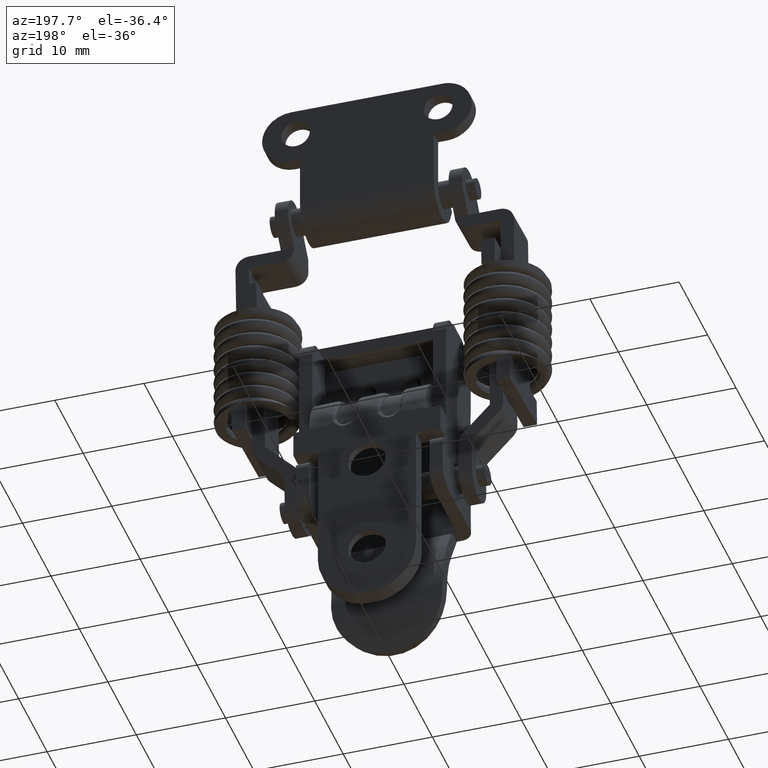
[diagram: clean part render]
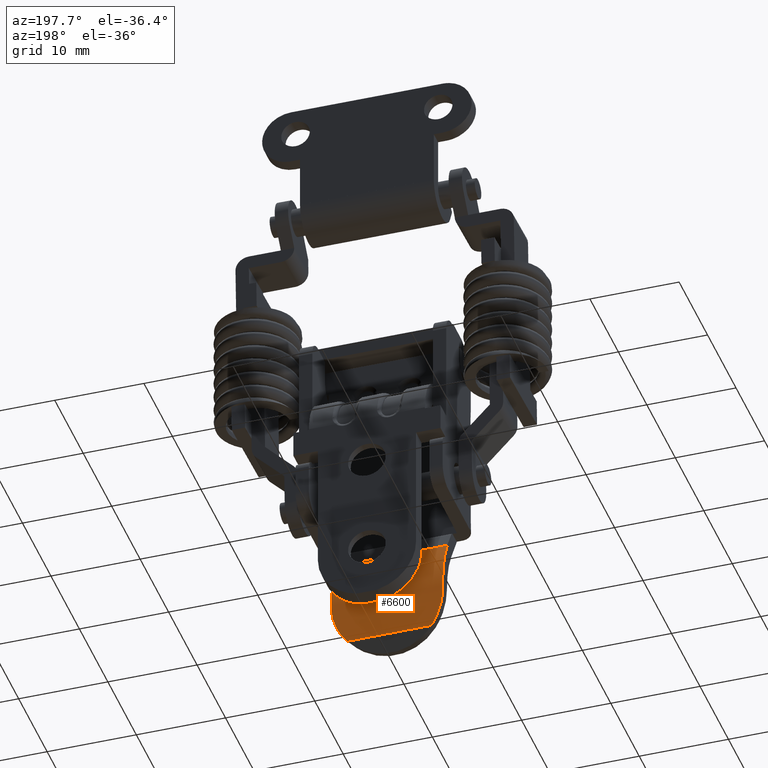
[diagram: same view with one face highlighted and labeled with its STEP entity id]
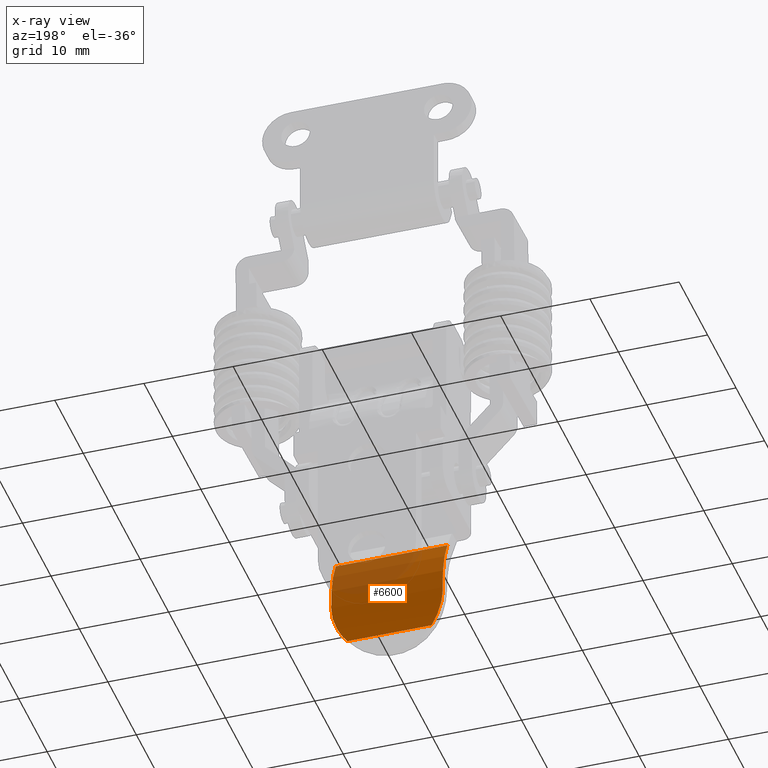
[diagram: x-ray of the same camera — body ghosted, the highlighted face saturated]
A machine part, auxiliary view. The second image highlights one B-rep face of the part: STEP entity #6600.
The next image is the same camera in x-ray: the body ghosted, the highlighted face saturated — about 27% of this face is hidden behind the body in this view.
In plain terms, the highlighted face is a freeform B-spline surface patch.
Its self-contained STEP definition (entity closure, byte-faithful):
#6143=CARTESIAN_POINT('',(-4.880999999999940,-4.727052199391070,-52.993612500000197));
#6144=VERTEX_POINT('',#6143);
#6145=CARTESIAN_POINT('',(-4.880999999999940,4.727052199390901,-52.993612500000197));
#6146=VERTEX_POINT('',#6145);
#6162=CARTESIAN_POINT('',(-4.011013829455795,-6.250000000000000,-48.902701641977814));
#6163=VERTEX_POINT('',#6162);
#6164=CARTESIAN_POINT('',(-4.011013829455795,-6.250000000000000,-48.902701641977814));
#6165=CARTESIAN_POINT('',(-4.026928761654331,-6.249999999999999,-49.285994906856573));
#6166=CARTESIAN_POINT('',(-4.060210825161759,-6.219741821774563,-49.662769039176368));
#6167=CARTESIAN_POINT('',(-4.134082961096336,-6.126316051186806,-50.218015545801727));
#6168=CARTESIAN_POINT('',(-4.162704462183127,-6.087131577984105,-50.401439257738240));
#6169=CARTESIAN_POINT('',(-4.211405745263505,-6.015578765689623,-50.674010068996637));
#6170=CARTESIAN_POINT('',(-4.228618167842091,-5.989569046789359,-50.764523152718930));
#6171=CARTESIAN_POINT('',(-4.264858069174880,-5.933237324404514,-50.944321979372589));
#6172=CARTESIAN_POINT('',(-4.283762657493544,-5.903107057533142,-51.033009380367680));
#6173=CARTESIAN_POINT('',(-4.381897194757110,-5.742718781649477,-51.470515210111991));
#6174=CARTESIAN_POINT('',(-4.471943208267600,-5.583455718403865,-51.801649606301268));
#6175=CARTESIAN_POINT('',(-4.618720065451055,-5.297286427870737,-52.271157675663510));
#6176=CARTESIAN_POINT('',(-4.669656748006079,-5.193859236055496,-52.423262551169692));
#6177=CARTESIAN_POINT('',(-4.774260195130588,-4.970987871665011,-52.717635237650612));
#6178=CARTESIAN_POINT('',(-4.827461785821073,-4.852537213414672,-52.858624815983923));
#6179=CARTESIAN_POINT('',(-4.880999999999940,-4.727052199390890,-52.993612500000197));
#6180=B_SPLINE_CURVE_WITH_KNOTS('',3,(#6164,#6165,#6166,#6167,#6168,#6169,#6170,#6171,#6172,#6173,#6174,#6175,#6176,#6177,#6178,#6179),.UNSPECIFIED.,.F.,.U.,(4,2,2,2,2,2,2,4),(0.0,0.250000000000011,0.375000000000016,0.437500000000017,0.500000000000017,0.750000000000007,0.875000000000003,1.0),.UNSPECIFIED.);
#6181=EDGE_CURVE('',#6163,#6144,#6180,.T.);
#6253=CARTESIAN_POINT('',(-4.011013829455795,6.250000000000000,-48.902701641977814));
#6254=VERTEX_POINT('',#6253);
#6260=CARTESIAN_POINT('',(-4.880999999999940,4.727052199390901,-52.993612500000197));
#6261=CARTESIAN_POINT('',(-4.773958223857127,4.977941008187083,-52.723724501752173));
#6262=CARTESIAN_POINT('',(-4.669497020733644,5.198062190269609,-52.432994690552214));
#6263=CARTESIAN_POINT('',(-4.522916918182150,5.484181897439840,-51.964988698416150));
#6264=CARTESIAN_POINT('',(-4.475737286197668,5.572167639440769,-51.803641226792223));
#6265=CARTESIAN_POINT('',(-4.408279890849134,5.692947725804304,-51.553270934980681));
#6266=CARTESIAN_POINT('',(-4.386308991393470,5.731402732523991,-51.468268025697853));
#6267=CARTESIAN_POINT('',(-4.343778589499743,5.804237032968589,-51.296080623349987));
#6268=CARTESIAN_POINT('',(-4.323315665121832,5.838454895698403,-51.209300454451039));
#6269=CARTESIAN_POINT('',(-4.225181822326841,5.998881036476732,-50.772021644026829));
#6270=CARTESIAN_POINT('',(-4.160045393664396,6.093319153652517,-50.411445258078878));
#6271=CARTESIAN_POINT('',(-4.098045881333865,6.171930568272355,-49.947556295646550));
#6272=CARTESIAN_POINT('',(-4.086617820806620,6.185667870838068,-49.854116653544899));
#6273=CARTESIAN_POINT('',(-4.065778106287068,6.209195663923303,-49.665907045457637));
#6274=CARTESIAN_POINT('',(-4.056353297996563,6.218997762395873,-49.570979038624372));
#6275=CARTESIAN_POINT('',(-4.031321707965068,6.242397231200738,-49.285413877484217));
#6276=CARTESIAN_POINT('',(-4.018972586781044,6.250000000000001,-49.094379372144523));
#6277=CARTESIAN_POINT('',(-4.011013829455795,6.250000000000000,-48.902701641977814));
#6278=B_SPLINE_CURVE_WITH_KNOTS('',3,(#6260,#6261,#6262,#6263,#6264,#6265,#6266,#6267,#6268,#6269,#6270,#6271,#6272,#6273,#6274,#6275,#6276,#6277),.UNSPECIFIED.,.F.,.U.,(4,2,2,2,2,2,2,2,4),(0.0,0.249999999999998,0.374999999999996,0.437499999999996,0.499999999999995,0.750000000000000,0.812500000000000,0.875000000000000,1.0),.UNSPECIFIED.);
#6279=EDGE_CURVE('',#6146,#6254,#6278,.T.);
#6451=CARTESIAN_POINT('',(-5.636729719343740,6.250000000000000,-42.199814410685903));
#6452=VERTEX_POINT('',#6451);
#6453=CARTESIAN_POINT('',(-4.011013829455830,6.250000000000000,-48.902701641977814));
#6454=CARTESIAN_POINT('',(-3.862171762260343,6.250000000000000,-45.318007646742934));
#6455=CARTESIAN_POINT('',(-5.636729719343757,6.250000000000000,-42.199814410685903));
#6463=(BOUNDED_CURVE()B_SPLINE_CURVE(2,(#6453,#6454,#6455),.UNSPECIFIED.,.F.,.U.)CURVE()GEOMETRIC_REPRESENTATION_ITEM()QUASI_UNIFORM_CURVE()RATIONAL_B_SPLINE_CURVE((1.0,0.961209318862400,1.0))REPRESENTATION_ITEM(''));
#6464=EDGE_CURVE('',#6254,#6452,#6463,.T.);
#6523=CARTESIAN_POINT('',(-5.636729719343740,-6.250000000000000,-42.199814410685903));
#6524=VERTEX_POINT('',#6523);
#6525=CARTESIAN_POINT('',(-4.011013829455830,-6.250000000000000,-48.902701641977814));
#6526=CARTESIAN_POINT('',(-3.862171762260343,-6.250000000000000,-45.318007646742934));
#6527=CARTESIAN_POINT('',(-5.636729719343757,-6.250000000000000,-42.199814410685903));
#6535=(BOUNDED_CURVE()B_SPLINE_CURVE(2,(#6525,#6526,#6527),.UNSPECIFIED.,.F.,.U.)CURVE()GEOMETRIC_REPRESENTATION_ITEM()QUASI_UNIFORM_CURVE()RATIONAL_B_SPLINE_CURVE((1.0,0.961209318862400,1.0))REPRESENTATION_ITEM(''));
#6536=EDGE_CURVE('',#6163,#6524,#6535,.T.);
#6566=CARTESIAN_POINT('',(-5.636729719343740,-6.250000000000000,-42.199814410685903));
#6567=CARTESIAN_POINT('',(-5.636729719343740,6.250000000000000,-42.199814410685903));
#6568=QUASI_UNIFORM_CURVE('',1,(#6566,#6567),.UNSPECIFIED.,.F.,.U.);
#6569=EDGE_CURVE('',#6524,#6452,#6568,.T.);
#6574=CARTESIAN_POINT('',(-5.005648295758013,-6.562500000000001,-53.296271099172841));
#6575=CARTESIAN_POINT('',(-5.005648295758013,6.570312500000001,-53.296271099172841));
#6576=CARTESIAN_POINT('',(-2.434779311290068,-6.562500000000001,-47.278863910514538));
#6577=CARTESIAN_POINT('',(-2.434779311290068,6.570312500000000,-47.278863910514538));
#6578=CARTESIAN_POINT('',(-5.913692843308130,-6.562500000000001,-41.736687691179981));
#6579=CARTESIAN_POINT('',(-5.913692843308130,6.570312500000001,-41.736687691179981));
#6587=(BOUNDED_SURFACE()B_SPLINE_SURFACE(1,2,((#6574,#6576,#6578),(#6575,#6577,#6579)),.UNSPECIFIED.,.F.,.F.,.U.)B_SPLINE_SURFACE_WITH_KNOTS((2,2),(3,3),(0.0,13.132812500000000),(0.0,12.296084066579720),.UNSPECIFIED.)GEOMETRIC_REPRESENTATION_ITEM()RATIONAL_B_SPLINE_SURFACE(((1.0,0.884574196976069,0.996791999566538),(1.0,0.884574196976069,0.996791999566538)))REPRESENTATION_ITEM('')SURFACE());
#6588=ORIENTED_EDGE('',*,*,#6536,.F.);
#6589=ORIENTED_EDGE('',*,*,#6181,.T.);
#6590=CARTESIAN_POINT('',(-4.880999999999940,-4.727052199391070,-52.993612500000197));
#6591=CARTESIAN_POINT('',(-4.880999999999940,4.727052199390901,-52.993612500000197));
#6592=QUASI_UNIFORM_CURVE('',1,(#6590,#6591),.UNSPECIFIED.,.F.,.U.);
#6593=EDGE_CURVE('',#6144,#6146,#6592,.T.);
#6594=ORIENTED_EDGE('',*,*,#6593,.T.);
#6595=ORIENTED_EDGE('',*,*,#6279,.T.);
#6596=ORIENTED_EDGE('',*,*,#6464,.T.);
#6597=ORIENTED_EDGE('',*,*,#6569,.F.);
#6598=EDGE_LOOP('',(#6588,#6589,#6594,#6595,#6596,#6597));
#6599=FACE_OUTER_BOUND('',#6598,.T.);
#6600=ADVANCED_FACE('',(#6599),#6587,.T.);